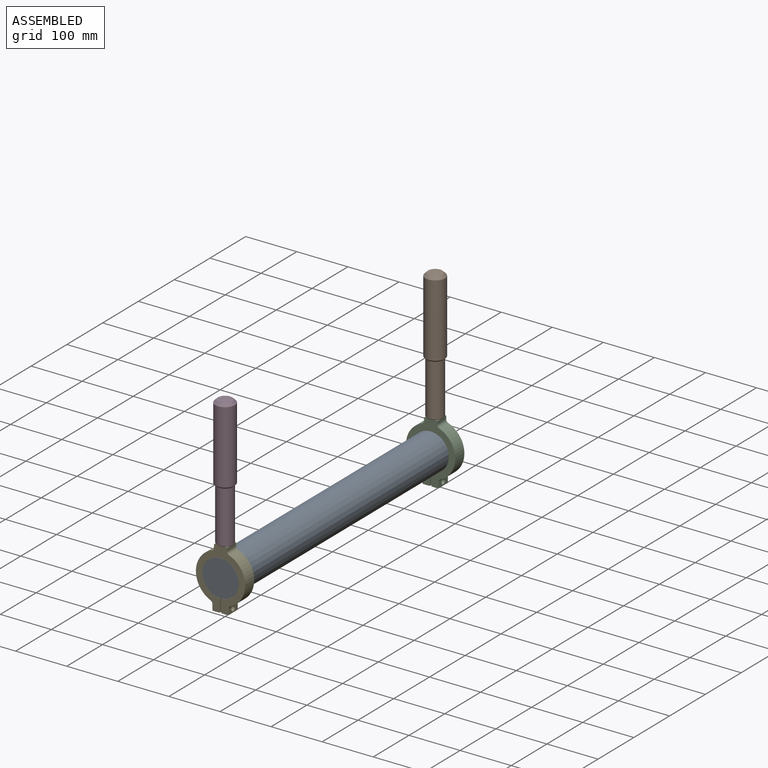
[diagram: assembled view]
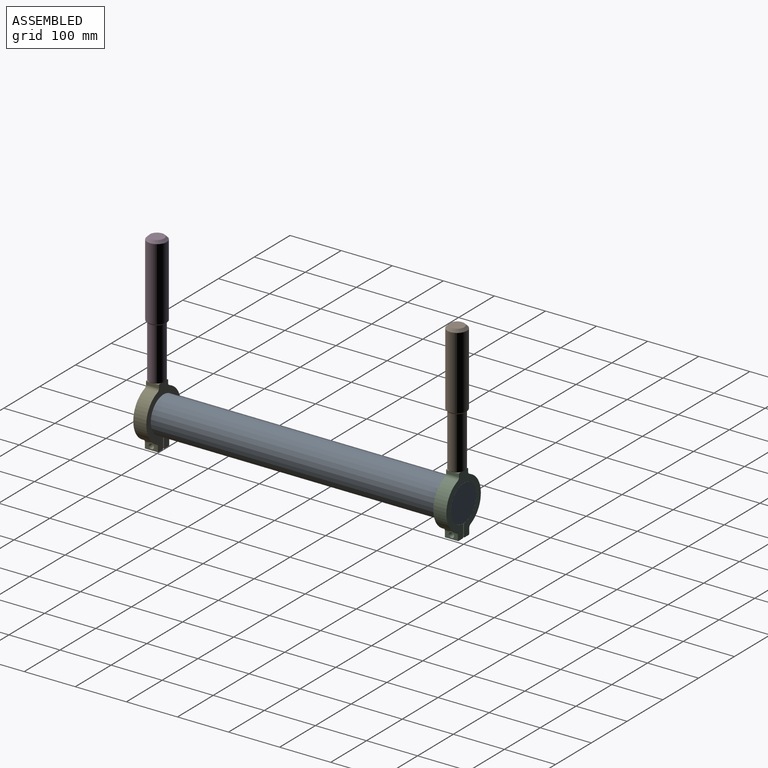
[diagram: assembled view, second angle]
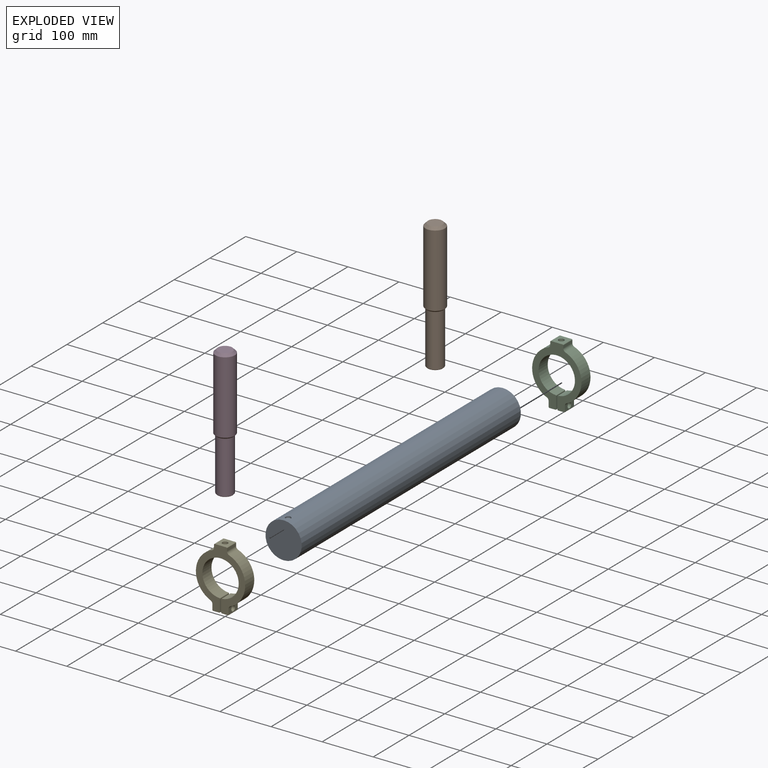
[diagram: exploded view]
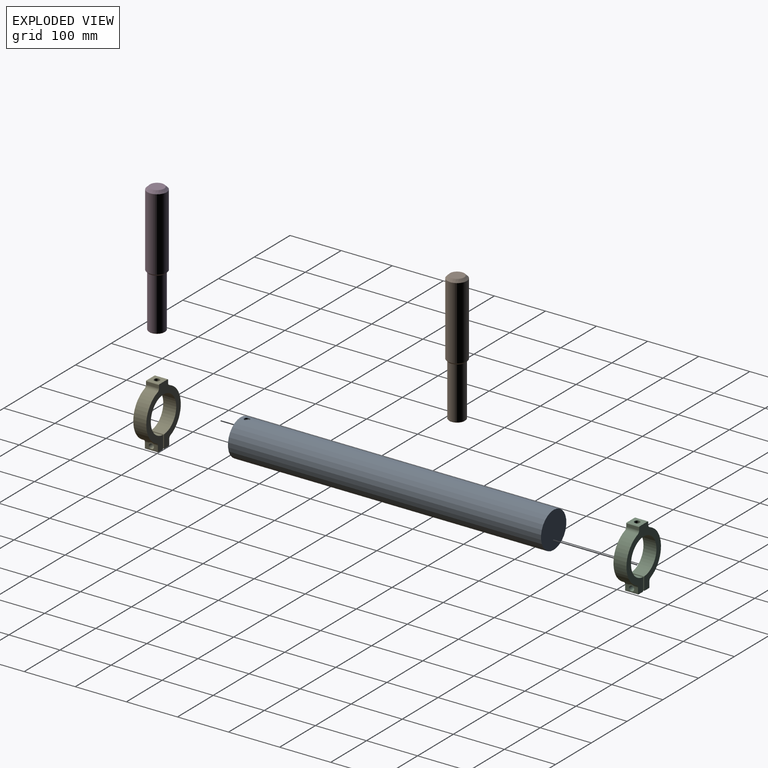
[diagram: exploded view, second angle]
ASSEMBLY  parts=5 mates=4
PART A: 5 faces, bbox 71x612.8x71 mm
  f0: cylinder r=35.51mm len=612.78mm, axis (0,1,0), area 136626.4mm2, adj f1,f2,f3
  f1: plane 71.02x71.02mm, normal (0,-1,0), area 3961.2mm2, adj f0
  f2: plane 71.02x71.02mm, normal (0,1,0), area 3961.2mm2, adj f0
  f3: cylinder r=5.36mm len=10.72mm, axis (0,0,1), area 98.3mm2, adj f0,f4
  f4: cone r=0mm half-angle=59deg, axis (0,0,1), area 105.2mm2, adj f3
PART B: 10 faces, bbox 38.1x38.1x254 mm
  f0: plane 29.21x29.21mm, normal (0,0,-1), area 532.1mm2, adj f8,f9
  f1: cylinder r=15.88mm len=102.24mm, axis (0,0,-1), area 10197.5mm2, adj f4,f8
  f2: cylinder r=19.05mm len=142.24mm, axis (0,0,-1), area 17025.4mm2, adj f4,f5
  f3: plane 27.94x27.94mm, normal (0,0,1), area 613.1mm2, adj f5
  f4: cone r=13.97mm half-angle=45deg, axis (0,0,1), area 492.7mm2, adj f1,f2
  f5: cone r=19.05mm half-angle=45deg, axis (0,0,-1), area 745.3mm2, adj f2,f3
  f6: cone r=0mm half-angle=59deg, axis (0,0,-1), area 105.2mm2, adj f7
  f7: cylinder r=5.36mm len=25.23mm, axis (0,0,-1), area 849.4mm2, adj f6,f9
  f8: cone r=14.61mm half-angle=45deg, axis (0,0,1), area 172mm2, adj f0,f1
  f9: cone r=5.36mm half-angle=45deg, axis (0,0,-1), area 67.6mm2, adj f0,f7
PART C: 31 faces, bbox 96.5x25.4x119.2 mm
  f0: cylinder r=6.35mm len=25.4mm, axis (0,-1,0), area 185.8mm2, adj f4,f5,f24,f25,f30
  f1: cylinder r=6.35mm len=25.4mm, axis (0,-1,0), area 155.6mm2, adj f16,f17,f24,f25,f27
  f2: cylinder r=35.56mm len=71.12mm, axis (0,-1,0), area 5459.9mm2, adj f10,f11,f24,f25,f26
  f3: cylinder r=6.35mm len=25.4mm, axis (0,-1,0), area 195.9mm2, adj f4,f23,f24,f25
  f4: cylinder r=48.26mm len=89.31mm, axis (0,-1,0), area 2900.4mm2, adj f0,f3,f24,f25
  f5: plane 25.4x10.3mm, normal (-1,0,0), area 212.1mm2, adj f0,f6,f24,f25,f30
  f6: cylinder r=1.27mm len=25.4mm, axis (0,-1,0), area 50.7mm2, adj f5,f7,f24,f25
  f7: plane 25.4x12.07mm, normal (0,0,-1), area 306.5mm2, adj f6,f8,f24,f25
  f8: cylinder r=1.27mm len=25.4mm, axis (0,-1,0), area 50.7mm2, adj f7,f9,f24,f25
  f9: plane 25.4x23.44mm, normal (1,0,0), area 545.8mm2, adj f8,f10,f24,f25,f30
  f10: cylinder r=1.27mm len=25.4mm, axis (0,-1,0), area 48.4mm2, adj f2,f9,f24,f25
  f11: cylinder r=1.27mm len=25.4mm, axis (0,-1,0), area 48.4mm2, adj f2,f12,f24,f25
  f12: plane 25.4x23.44mm, normal (-1,0,0), area 545.4mm2, adj f11,f13,f24,f25,f28
  f13: cylinder r=1.27mm len=25.4mm, axis (0,-1,0), area 50.7mm2, adj f12,f14,f24,f25
  f14: plane 25.4x12.07mm, normal (0,0,-1), area 306.5mm2, adj f13,f15,f24,f25
  f15: cylinder r=1.27mm len=25.4mm, axis (0,-1,0), area 50.7mm2, adj f14,f16,f24,f25
  f16: plane 25.4x13.65mm, normal (1,0,0), area 210.7mm2, adj f1,f15,f24,f25,f27,f29
  f17: cylinder r=48.26mm len=89.31mm, axis (0,-1,0), area 2900.4mm2, adj f1,f18,f24,f25
  f18: cylinder r=6.35mm len=25.4mm, axis (0,-1,0), area 195.9mm2, adj f17,f19,f24,f25
  f19: plane 25.4x5.34mm, normal (1,0,0), area 135.5mm2, adj f18,f20,f24,f25
  f20: cylinder r=1.27mm len=25.4mm, axis (0,-1,0), area 50.7mm2, adj f19,f21,f24,f25
  f21: plane 25.4x22.86mm, normal (0,0,1), area 490.5mm2, adj f20,f22,f24,f25,f26
  f22: cylinder r=1.27mm len=25.4mm, axis (0,-1,0), area 50.7mm2, adj f21,f23,f24,f25
  f23: plane 25.4x5.34mm, normal (-1,0,0), area 135.5mm2, adj f3,f22,f24,f25
  f24: plane 119.23x96.52mm, normal (0,1,0), area 3992.9mm2, adj f0,f1,f2,f3,f4,f5,f6,f7
  f25: plane 119.23x96.52mm, normal (0,-1,0), area 3992.9mm2, adj f0,f1,f2,f3,f4,f5,f6,f7
  f26: cylinder r=5.36mm len=22.63mm, axis (0,0,1), area 755.1mm2, adj f2,f21
  f27: cylinder r=7.3mm len=12.29mm, axis (-1,0,0), area 7.1mm2, adj f1,f16
  f28: cone r=0mm half-angle=59deg, axis (1,0,0), area 35mm2, adj f12,f29
  f29: cylinder r=5.04mm len=13.97mm, axis (1,0,0), area 442.6mm2, adj f16,f28
  f30: cylinder r=3.97mm len=14.61mm, axis (1,0,0), area 364.2mm2, adj f0,f5,f9
PART D: same geometry as B
PART E: same geometry as C
PLACE A t=(0,-306.39,0)mm
PLACE B t=(0,280.99,0)mm
PLACE C t=(0,280.99,0)mm
PLACE D t=(0,-306.39,0)mm
PLACE E t=(0,-306.39,0)mm
MATE fastened B.f1 <-> C.f26  axis (0,0,-1) through (0,-12.7,57.78)mm
MATE fastened A.f0 <-> E.f2  axis (0,-1,0) through (0,-612.78,0)mm
MATE fastened A.f0 <-> C.f4  axis (0,1,0) through (0,0,0)mm
MATE fastened D.f1 <-> E.f26  axis (0,0,-1) through (0,-600.08,57.78)mm
